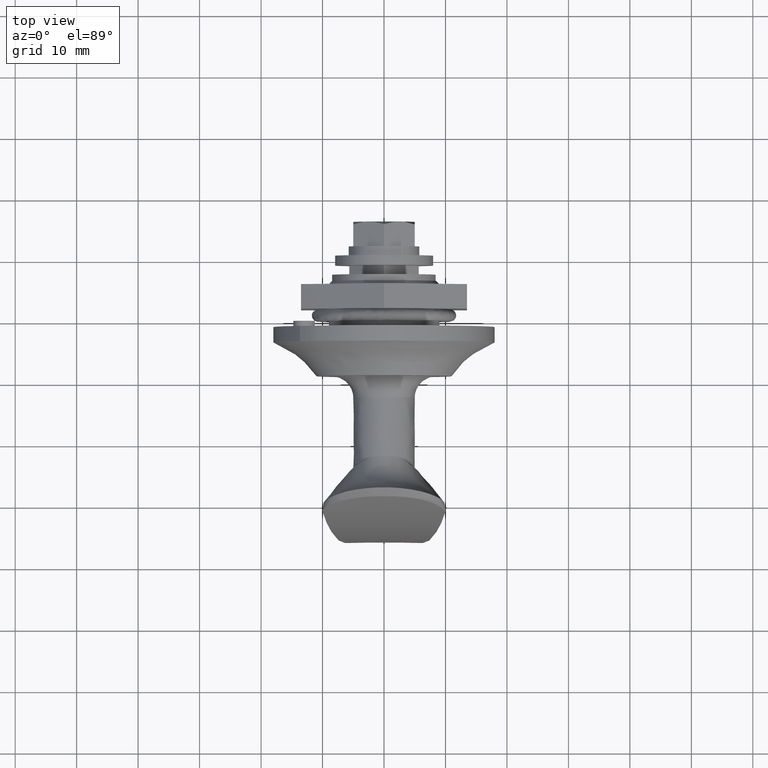
[diagram: clean part render]
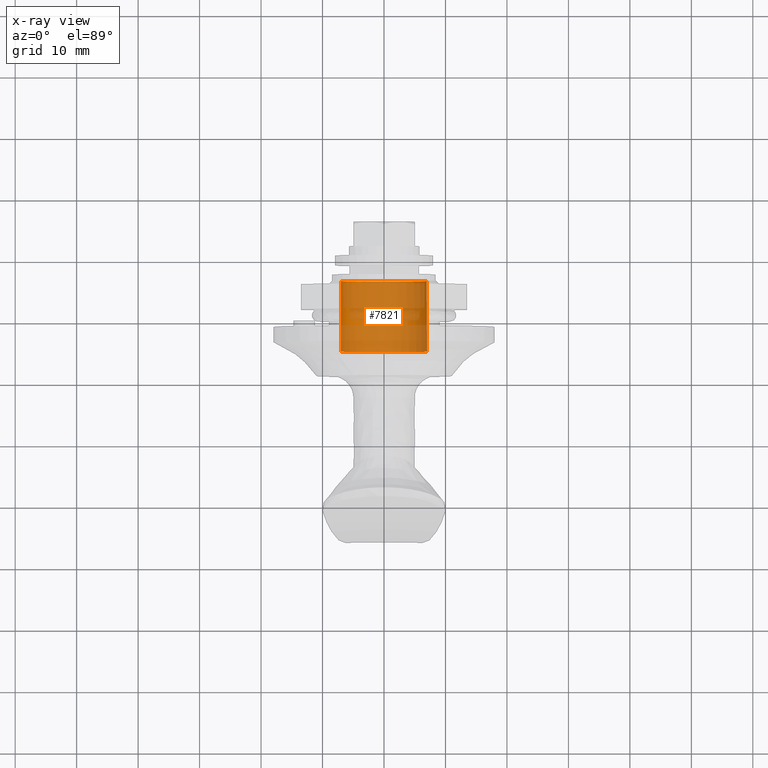
[diagram: x-ray — body ghosted, one internal face saturated and labeled with its STEP entity id]
A machine part, top view, then the same camera in x-ray: the body is ghosted and one INTERNAL B-rep face — a face not visible from any outside direction — is saturated and labeled: STEP entity #7821.
In plain terms, the highlighted face is a freeform B-spline surface patch.
Its self-contained STEP definition (entity closure, byte-faithful):
#7654=CARTESIAN_POINT('',(4.0,-6.945863496764003,0.868896014676045));
#7655=VERTEX_POINT('',#7654);
#7671=CARTESIAN_POINT('',(4.0,6.999733461447408,-0.061085748682298));
#7672=VERTEX_POINT('',#7671);
#7688=CARTESIAN_POINT('',(15.500000000000000,6.999733461447600,-0.061085748660244));
#7689=VERTEX_POINT('',#7688);
#7690=CARTESIAN_POINT('',(15.500000000000000,6.999733461447600,-0.061085748660244));
#7691=CARTESIAN_POINT('',(4.0,6.999733461447408,-0.061085748682298));
#7692=QUASI_UNIFORM_CURVE('',1,(#7690,#7691),.UNSPECIFIED.,.F.,.U.);
#7693=EDGE_CURVE('',#7689,#7672,#7692,.T.);
#7712=CARTESIAN_POINT('',(15.500000000000000,-6.945863496775200,0.868896014586544));
#7713=VERTEX_POINT('',#7712);
#7727=CARTESIAN_POINT('',(15.500000000000000,-6.945863496775200,0.868896014586544));
#7728=CARTESIAN_POINT('',(4.0,-6.945863496764003,0.868896014676045));
#7729=QUASI_UNIFORM_CURVE('',1,(#7727,#7728),.UNSPECIFIED.,.F.,.U.);
#7730=EDGE_CURVE('',#7713,#7655,#7729,.T.);
#7735=CARTESIAN_POINT('',(15.787500000000000,6.999733461449097,-0.061085748488616));
#7736=CARTESIAN_POINT('',(15.787500000000000,6.938647712960482,-7.060819209937713));
#7737=CARTESIAN_POINT('',(15.787500000000000,-0.061085748488616,-6.999733461449097));
#7738=CARTESIAN_POINT('',(15.787500000000000,-7.060819209937713,-6.938647712960482));
#7739=CARTESIAN_POINT('',(15.787500000000000,-6.999733461449097,0.061085748488616));
#7740=CARTESIAN_POINT('',(15.787500000000000,-6.996195018821829,0.466551112707208));
#7741=CARTESIAN_POINT('',(15.787499999999998,-6.945863496778670,0.868896014558793));
#7742=CARTESIAN_POINT('',(3.705312500000000,6.999733461449097,-0.061085748488616));
#7743=CARTESIAN_POINT('',(3.705312499999999,6.938647712960482,-7.060819209937713));
#7744=CARTESIAN_POINT('',(3.705312500000000,-0.061085748488616,-6.999733461449097));
#7745=CARTESIAN_POINT('',(3.705312499999999,-7.060819209937713,-6.938647712960482));
#7746=CARTESIAN_POINT('',(3.705312500000000,-6.999733461449097,0.061085748488616));
#7747=CARTESIAN_POINT('',(3.705312499999999,-6.996195018821829,0.466551112707208));
#7748=CARTESIAN_POINT('',(3.705312500000001,-6.945863496778670,0.868896014558793));
#7756=(BOUNDED_SURFACE()B_SPLINE_SURFACE(2,1,((#7735,#7742),(#7736,#7743),(#7737,#7744),(#7738,#7745),(#7739,#7746),(#7740,#7747),(#7741,#7748)),.UNSPECIFIED.,.F.,.F.,.U.)B_SPLINE_SURFACE_WITH_KNOTS((3,2,2,3),(2,2),(0.0,11.597979746446491,23.195959492892982,24.123797872608701),(0.0,12.082187500000000),.UNSPECIFIED.)GEOMETRIC_REPRESENTATION_ITEM()RATIONAL_B_SPLINE_SURFACE(((1.0,1.0),(0.707106781186548,0.707106781186548),(1.0,1.0),(0.707106781186548,0.707106781186548),(1.0,1.0),(0.976568542494924,0.976568542494924),(0.956886118190660,0.956886118190660)))REPRESENTATION_ITEM('')SURFACE());
#7757=CARTESIAN_POINT('',(4.0,0.0,-6.999999999999901));
#7758=VERTEX_POINT('',#7757);
#7759=CARTESIAN_POINT('',(4.0,0.0,-6.999999999999901));
#7760=CARTESIAN_POINT('',(4.000000000000000,-6.999999999999899,-6.999999999999899));
#7761=CARTESIAN_POINT('',(4.0,-6.999999999999901,0.0));
#7762=CARTESIAN_POINT('',(4.000000000000000,-6.999999999999901,0.436134492853093));
#7763=CARTESIAN_POINT('',(4.0,-6.945863496764003,0.868896014676045));
#7771=(BOUNDED_CURVE()B_SPLINE_CURVE(2,(#7759,#7760,#7761,#7762,#7763),.UNSPECIFIED.,.F.,.U.)B_SPLINE_CURVE_WITH_KNOTS((3,2,3),(0.500000000000000,0.750000000000000,0.771473928976396),.UNSPECIFIED.)CURVE()GEOMETRIC_REPRESENTATION_ITEM()RATIONAL_B_SPLINE_CURVE((1.0,0.707106781186548,1.0,0.974841727286128,0.954005430263668))REPRESENTATION_ITEM(''));
#7772=EDGE_CURVE('',#7758,#7655,#7771,.T.);
#7773=ORIENTED_EDGE('',*,*,#7772,.T.);
#7774=ORIENTED_EDGE('',*,*,#7730,.F.);
#7775=CARTESIAN_POINT('',(15.500000000000000,0.0,-6.999999999999901));
#7776=VERTEX_POINT('',#7775);
#7777=CARTESIAN_POINT('',(15.499999999999996,-6.945863496775200,0.868896014586544));
#7778=CARTESIAN_POINT('',(15.500000000000000,-6.999999999999901,0.436134492762530));
#7779=CARTESIAN_POINT('',(15.500000000000000,-6.999999999999901,0.0));
#7780=CARTESIAN_POINT('',(15.500000000000004,-6.999999999999899,-6.999999999999899));
#7781=CARTESIAN_POINT('',(15.500000000000000,0.0,-6.999999999999901));
#7789=(BOUNDED_CURVE()B_SPLINE_CURVE(2,(#7777,#7778,#7779,#7780,#7781),.UNSPECIFIED.,.F.,.U.)B_SPLINE_CURVE_WITH_KNOTS((3,2,3),(0.728526071027951,0.750000000000000,1.0),.UNSPECIFIED.)CURVE()GEOMETRIC_REPRESENTATION_ITEM()RATIONAL_B_SPLINE_CURVE((0.954005430272103,0.974841727291221,1.0,0.707106781186548,1.0))REPRESENTATION_ITEM(''));
#7790=EDGE_CURVE('',#7713,#7776,#7789,.T.);
#7791=ORIENTED_EDGE('',*,*,#7790,.T.);
#7792=CARTESIAN_POINT('',(15.500000000000000,0.0,-6.999999999999901));
#7793=CARTESIAN_POINT('',(15.500000000000005,6.939178473824448,-6.999999999999897));
#7794=CARTESIAN_POINT('',(15.499999999999996,6.999733461447600,-0.061085748660244));
#7802=(BOUNDED_CURVE()B_SPLINE_CURVE(2,(#7792,#7793,#7794),.UNSPECIFIED.,.F.,.U.)B_SPLINE_CURVE_WITH_KNOTS((3,3),(0.0,0.248460105656375),.UNSPECIFIED.)CURVE()GEOMETRIC_REPRESENTATION_ITEM()RATIONAL_B_SPLINE_CURVE((1.0,0.708910879630295,0.996414028080416))REPRESENTATION_ITEM(''));
#7803=EDGE_CURVE('',#7776,#7689,#7802,.T.);
#7804=ORIENTED_EDGE('',*,*,#7803,.T.);
#7805=ORIENTED_EDGE('',*,*,#7693,.T.);
#7806=CARTESIAN_POINT('',(3.999999999999999,6.999733461447408,-0.061085748682298));
#7807=CARTESIAN_POINT('',(4.000000000000000,6.939178473780721,-6.999999999999899));
#7808=CARTESIAN_POINT('',(4.0,0.0,-6.999999999999901));
#7816=(BOUNDED_CURVE()B_SPLINE_CURVE(2,(#7806,#7807,#7808),.UNSPECIFIED.,.F.,.U.)B_SPLINE_CURVE_WITH_KNOTS((3,3),(0.251539894344735,0.500000000000000),.UNSPECIFIED.)CURVE()GEOMETRIC_REPRESENTATION_ITEM()RATIONAL_B_SPLINE_CURVE((0.996414028077847,0.708910879631596,1.0))REPRESENTATION_ITEM(''));
#7817=EDGE_CURVE('',#7672,#7758,#7816,.T.);
#7818=ORIENTED_EDGE('',*,*,#7817,.T.);
#7819=EDGE_LOOP('',(#7773,#7774,#7791,#7804,#7805,#7818));
#7820=FACE_OUTER_BOUND('',#7819,.T.);
#7821=ADVANCED_FACE('',(#7820),#7756,.F.);